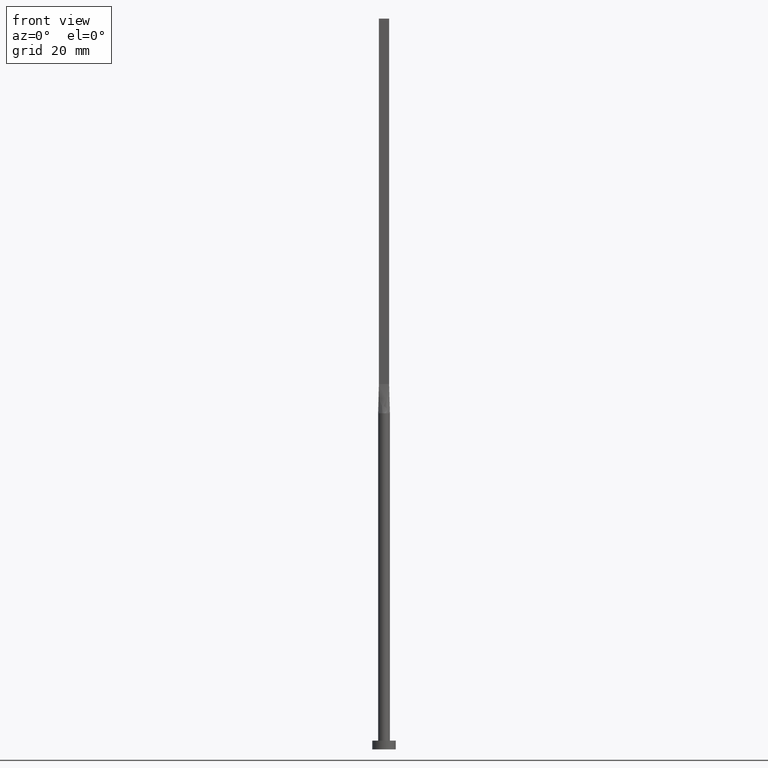
[diagram: clean part render]
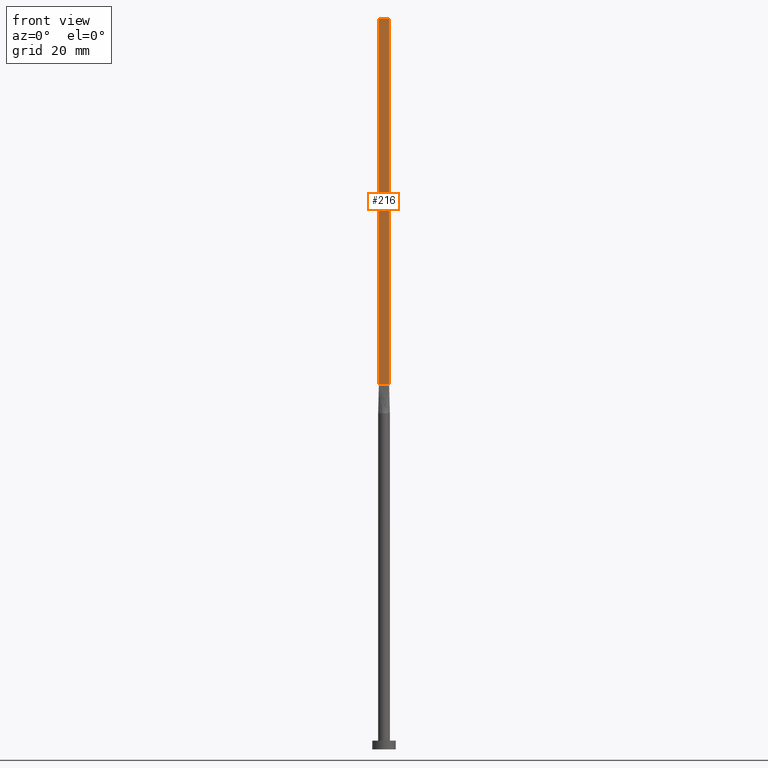
[diagram: same view with one face highlighted and labeled with its STEP entity id]
A machine part, front view. The second image highlights one B-rep face of the part: STEP entity #216.
In plain terms, the highlighted planar face has unit normal (0, 1, -0).
Its self-contained STEP definition (entity closure, byte-faithful):
#24 = DIRECTION ( 'NONE',  ( -0.000000000000000000, -0.000000000000000000, -1.000000000000000000 ) ) ;
#39 = CARTESIAN_POINT ( 'NONE',  ( 1.750000000000000000, -0.4999999999999997780, 125.0000000000000000 ) ) ;
#42 = AXIS2_PLACEMENT_3D ( 'NONE', #394, #456, #559 ) ;
#47 = LINE ( 'NONE', #534, #277 ) ;
#49 = CARTESIAN_POINT ( 'NONE',  ( -1.750000000000000000, -0.4999999999999995559, 250.0000000000000000 ) ) ;
#52 = CARTESIAN_POINT ( 'NONE',  ( 1.750000000000000000, -0.4999999999999997780, 250.0000000000000000 ) ) ;
#56 = EDGE_LOOP ( 'NONE', ( #160, #324, #180, #320 ) ) ;
#66 = FACE_OUTER_BOUND ( 'NONE', #56, .T. ) ;
#87 = CARTESIAN_POINT ( 'NONE',  ( 1.750000000000000000, -0.4999999999999997780, 250.0000000000000000 ) ) ;
#122 = EDGE_CURVE ( 'NONE', #300, #287, #475, .T. ) ;
#124 = CARTESIAN_POINT ( 'NONE',  ( -1.750000000000000000, -0.4999999999999995559, 250.0000000000000000 ) ) ;
#144 = VERTEX_POINT ( 'NONE', #39 ) ;
#150 = DIRECTION ( 'NONE',  ( 1.000000000000000000, -6.195440985631454085E-17, 0.000000000000000000 ) ) ;
#160 = ORIENTED_EDGE ( 'NONE', *, *, #336, .T. ) ;
#174 = DIRECTION ( 'NONE',  ( -0.000000000000000000, -0.000000000000000000, -1.000000000000000000 ) ) ;
#180 = ORIENTED_EDGE ( 'NONE', *, *, #393, .F. ) ;
#208 = LINE ( 'NONE', #546, #489 ) ;
#216 = ADVANCED_FACE ( 'NONE', ( #66 ), #248, .F. ) ;
#221 = EDGE_CURVE ( 'NONE', #390, #144, #272, .T. ) ;
#225 = DIRECTION ( 'NONE',  ( 1.000000000000000000, -6.195440985631454085E-17, 0.000000000000000000 ) ) ;
#248 = PLANE ( 'NONE',  #42 ) ;
#272 = LINE ( 'NONE', #87, #513 ) ;
#277 = VECTOR ( 'NONE', #225, 1000.000000000000000 ) ;
#287 = VERTEX_POINT ( 'NONE', #506 ) ;
#300 = VERTEX_POINT ( 'NONE', #49 ) ;
#320 = ORIENTED_EDGE ( 'NONE', *, *, #122, .T. ) ;
#324 = ORIENTED_EDGE ( 'NONE', *, *, #221, .F. ) ;
#336 = EDGE_CURVE ( 'NONE', #287, #144, #47, .T. ) ;
#390 = VERTEX_POINT ( 'NONE', #52 ) ;
#393 = EDGE_CURVE ( 'NONE', #300, #390, #208, .T. ) ;
#394 = CARTESIAN_POINT ( 'NONE',  ( -1.750000000000000000, -0.4999999999999995559, 250.0000000000000000 ) ) ;
#456 = DIRECTION ( 'NONE',  ( 6.195440985631454085E-17, 1.000000000000000000, -0.000000000000000000 ) ) ;
#475 = LINE ( 'NONE', #124, #481 ) ;
#481 = VECTOR ( 'NONE', #24, 1000.000000000000000 ) ;
#489 = VECTOR ( 'NONE', #150, 1000.000000000000000 ) ;
#506 = CARTESIAN_POINT ( 'NONE',  ( -1.750000000000000000, -0.4999999999999995559, 125.0000000000000000 ) ) ;
#513 = VECTOR ( 'NONE', #174, 1000.000000000000000 ) ;
#534 = CARTESIAN_POINT ( 'NONE',  ( -1.750000000000000000, -0.4999999999999995559, 125.0000000000000000 ) ) ;
#546 = CARTESIAN_POINT ( 'NONE',  ( -1.750000000000000000, -0.4999999999999995559, 250.0000000000000000 ) ) ;
#559 = DIRECTION ( 'NONE',  ( -1.000000000000000000, 6.195440985631454085E-17, 0.000000000000000000 ) ) ;